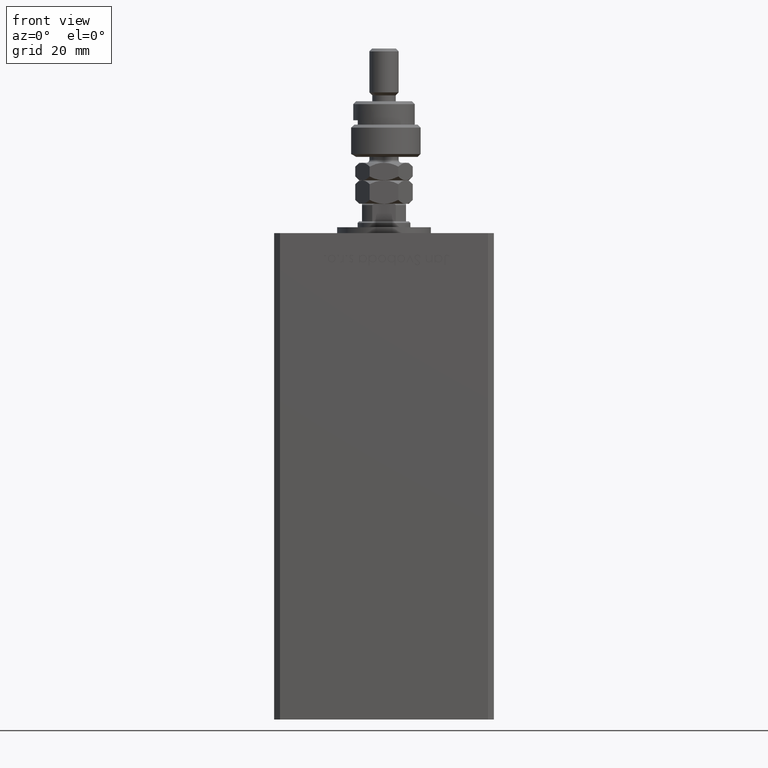
[diagram: clean part render]
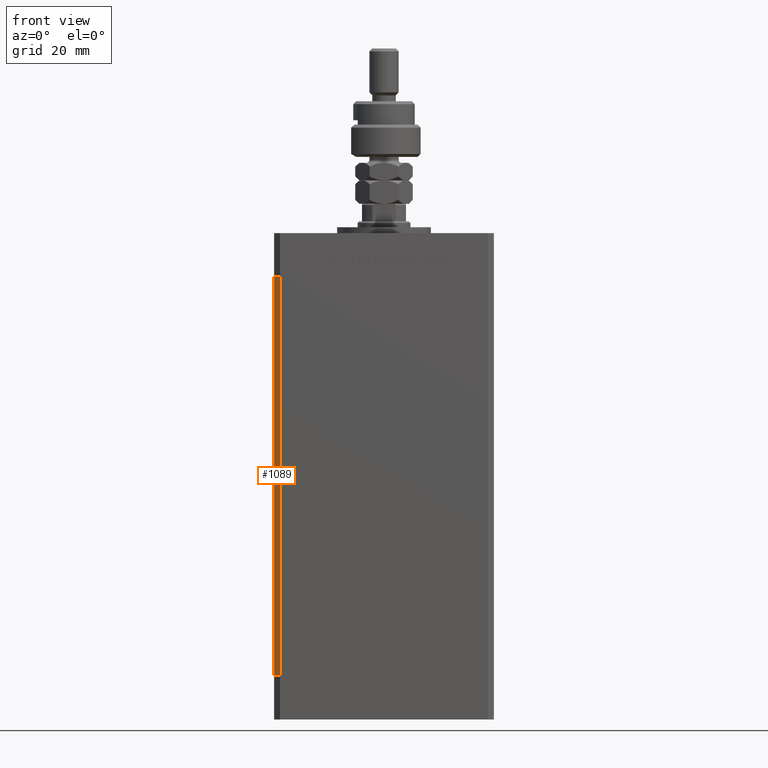
[diagram: same view with one face highlighted and labeled with its STEP entity id]
A machine part, front view. The second image highlights one B-rep face of the part: STEP entity #1089.
In plain terms, the highlighted planar face has unit normal (0.7071, 0.7071, 0).
Its self-contained STEP definition (entity closure, byte-faithful):
#300 = DIRECTION ( 'NONE',  ( 0.7071067811865475727, 0.7071067811865475727, -0.000000000000000000 ) ) ;
#1015 = VECTOR ( 'NONE', #18237, 1000.000000000000000 ) ;
#1089 = ADVANCED_FACE ( 'NONE', ( #20176 ), #24576, .F. ) ;
#3434 = ORIENTED_EDGE ( 'NONE', *, *, #14431, .F. ) ;
#3631 = DIRECTION ( 'NONE',  ( -0.7071067811865474617, 0.7071067811865474617, 0.000000000000000000 ) ) ;
#8654 = ORIENTED_EDGE ( 'NONE', *, *, #18076, .F. ) ;
#10285 = EDGE_LOOP ( 'NONE', ( #39880, #8654, #3434, #19055 ) ) ;
#13305 = CARTESIAN_POINT ( 'NONE',  ( -35.49999999999999289, -32.50000000000000000, 0.000000000000000000 ) ) ;
#14431 = EDGE_CURVE ( 'NONE', #44753, #22387, #23836, .T. ) ;
#15428 = DIRECTION ( 'NONE',  ( 0.7071067811865474617, -0.7071067811865474617, 0.000000000000000000 ) ) ;
#15436 = VECTOR ( 'NONE', #17297, 1000.000000000000000 ) ;
#17143 = LINE ( 'NONE', #38949, #1015 ) ;
#17297 = DIRECTION ( 'NONE',  ( -0.000000000000000000, -0.000000000000000000, -1.000000000000000000 ) ) ;
#18076 = EDGE_CURVE ( 'NONE', #22387, #46160, #47861, .T. ) ;
#18237 = DIRECTION ( 'NONE',  ( -0.000000000000000000, -0.000000000000000000, -1.000000000000000000 ) ) ;
#19055 = ORIENTED_EDGE ( 'NONE', *, *, #45193, .T. ) ;
#20176 = FACE_OUTER_BOUND ( 'NONE', #10285, .T. ) ;
#22387 = VERTEX_POINT ( 'NONE', #45687 ) ;
#22863 = VERTEX_POINT ( 'NONE', #35611 ) ;
#23836 = LINE ( 'NONE', #40705, #32268 ) ;
#24576 = PLANE ( 'NONE',  #32751 ) ;
#25618 = EDGE_CURVE ( 'NONE', #22863, #46160, #41657, .T. ) ;
#29708 = CARTESIAN_POINT ( 'NONE',  ( -35.49999999999999289, -32.50000000000000000, 136.0000000000000000 ) ) ;
#32135 = CARTESIAN_POINT ( 'NONE',  ( -37.49999999999999289, -30.50000000000000000, 136.0000000000000000 ) ) ;
#32268 = VECTOR ( 'NONE', #36541, 1000.000000000000114 ) ;
#32751 = AXIS2_PLACEMENT_3D ( 'NONE', #49733, #300, #3631 ) ;
#35611 = CARTESIAN_POINT ( 'NONE',  ( -37.49999999999999289, -30.50000000000000000, 0.000000000000000000 ) ) ;
#36541 = DIRECTION ( 'NONE',  ( 0.7071067811865474617, -0.7071067811865474617, 0.000000000000000000 ) ) ;
#38949 = CARTESIAN_POINT ( 'NONE',  ( -37.49999999999999289, -30.50000000000000000, 136.0000000000000000 ) ) ;
#39880 = ORIENTED_EDGE ( 'NONE', *, *, #25618, .T. ) ;
#40320 = VECTOR ( 'NONE', #15428, 1000.000000000000114 ) ;
#40705 = CARTESIAN_POINT ( 'NONE',  ( -37.49999999999999289, -30.50000000000000000, 136.0000000000000000 ) ) ;
#41657 = LINE ( 'NONE', #53281, #40320 ) ;
#44753 = VERTEX_POINT ( 'NONE', #32135 ) ;
#45193 = EDGE_CURVE ( 'NONE', #44753, #22863, #17143, .T. ) ;
#45687 = CARTESIAN_POINT ( 'NONE',  ( -35.49999999999999289, -32.50000000000000000, 136.0000000000000000 ) ) ;
#46160 = VERTEX_POINT ( 'NONE', #13305 ) ;
#47861 = LINE ( 'NONE', #29708, #15436 ) ;
#49733 = CARTESIAN_POINT ( 'NONE',  ( -37.49999999999999289, -30.50000000000000000, 136.0000000000000000 ) ) ;
#53281 = CARTESIAN_POINT ( 'NONE',  ( -37.49999999999999289, -30.50000000000000000, 0.000000000000000000 ) ) ;